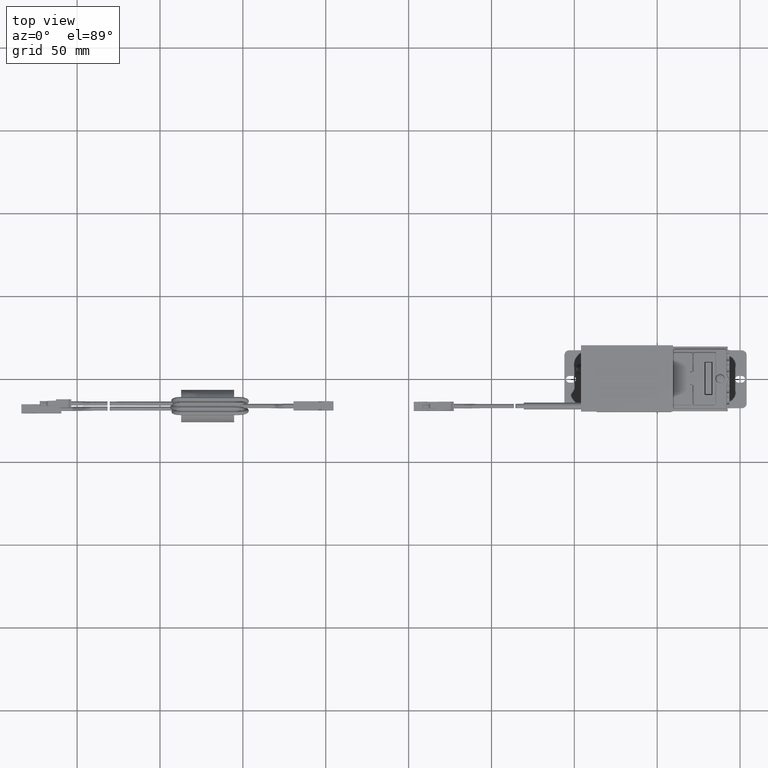
[diagram: clean part render]
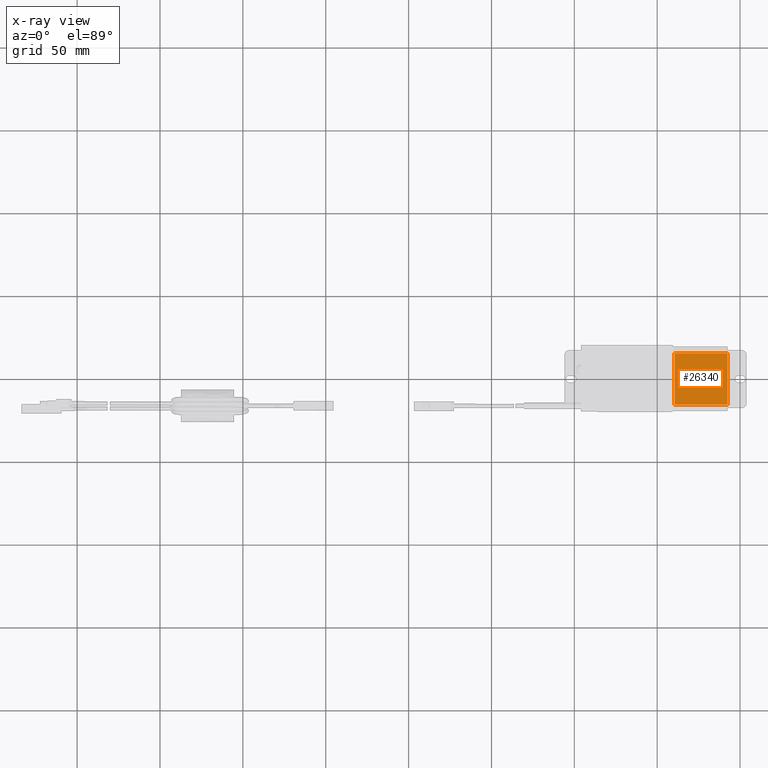
[diagram: x-ray — body ghosted, one internal face saturated and labeled with its STEP entity id]
A machine part, top view, then the same camera in x-ray: the body is ghosted and one INTERNAL B-rep face — a face not visible from any outside direction — is saturated and labeled: STEP entity #26340.
In plain terms, the highlighted face is a freeform B-spline surface patch.
Its self-contained STEP definition (entity closure, byte-faithful):
#26305=CARTESIAN_POINT('',(-41.066748097703041,-17.048449939915990,10.996575530486840));
#26306=CARTESIAN_POINT('',(-41.066748097703041,17.048450771400780,10.996575530486840));
#26307=CARTESIAN_POINT('',(-5.917695002838582,-17.048449939915990,10.996575530486840));
#26308=CARTESIAN_POINT('',(-5.917695002838582,17.048450771400780,10.996575530486840));
#26309=B_SPLINE_SURFACE_WITH_KNOTS('',1,1,((#26305,#26307),(#26306,#26308)),.UNSPECIFIED.,.F.,.F.,.U.,(2,2),(2,2),(0.0,34.096900711316771),(0.0,35.149053094864463),.UNSPECIFIED.);
#26310=CARTESIAN_POINT('',(-7.513927424065230,-15.500000000000000,10.996575530486840));
#26311=VERTEX_POINT('',#26310);
#26312=CARTESIAN_POINT('',(-39.470516533618898,-15.500000000000000,10.996575530486840));
#26313=VERTEX_POINT('',#26312);
#26314=CARTESIAN_POINT('',(-7.513927424065230,-15.500000000000000,10.996575530486840));
#26315=CARTESIAN_POINT('',(-39.470516533618898,-15.500000000000000,10.996575530486840));
#26316=QUASI_UNIFORM_CURVE('',1,(#26314,#26315),.UNSPECIFIED.,.F.,.U.);
#26317=EDGE_CURVE('',#26311,#26313,#26316,.T.);
#26318=ORIENTED_EDGE('',*,*,#26317,.T.);
#26319=CARTESIAN_POINT('',(-39.470516533618898,15.500000000000000,10.996575530486901));
#26320=VERTEX_POINT('',#26319);
#26321=CARTESIAN_POINT('',(-39.470516533618898,-15.500000000000000,10.996575530486840));
#26322=CARTESIAN_POINT('',(-39.470516533618898,15.500000000000000,10.996575530486901));
#26323=QUASI_UNIFORM_CURVE('',1,(#26321,#26322),.UNSPECIFIED.,.F.,.U.);
#26324=EDGE_CURVE('',#26313,#26320,#26323,.T.);
#26325=ORIENTED_EDGE('',*,*,#26324,.T.);
#26326=CARTESIAN_POINT('',(-7.513927424065230,15.500000000000000,10.996575530486901));
#26327=VERTEX_POINT('',#26326);
#26328=CARTESIAN_POINT('',(-39.470516533618898,15.500000000000000,10.996575530486901));
#26329=CARTESIAN_POINT('',(-7.513927424065230,15.500000000000000,10.996575530486901));
#26330=QUASI_UNIFORM_CURVE('',1,(#26328,#26329),.UNSPECIFIED.,.F.,.U.);
#26331=EDGE_CURVE('',#26320,#26327,#26330,.T.);
#26332=ORIENTED_EDGE('',*,*,#26331,.T.);
#26333=CARTESIAN_POINT('',(-7.513927424065230,15.500000000000000,10.996575530486901));
#26334=CARTESIAN_POINT('',(-7.513927424065230,-15.500000000000000,10.996575530486840));
#26335=QUASI_UNIFORM_CURVE('',1,(#26333,#26334),.UNSPECIFIED.,.F.,.U.);
#26336=EDGE_CURVE('',#26327,#26311,#26335,.T.);
#26337=ORIENTED_EDGE('',*,*,#26336,.T.);
#26338=EDGE_LOOP('',(#26318,#26325,#26332,#26337));
#26339=FACE_OUTER_BOUND('',#26338,.T.);
#26340=ADVANCED_FACE('',(#26339),#26309,.T.);